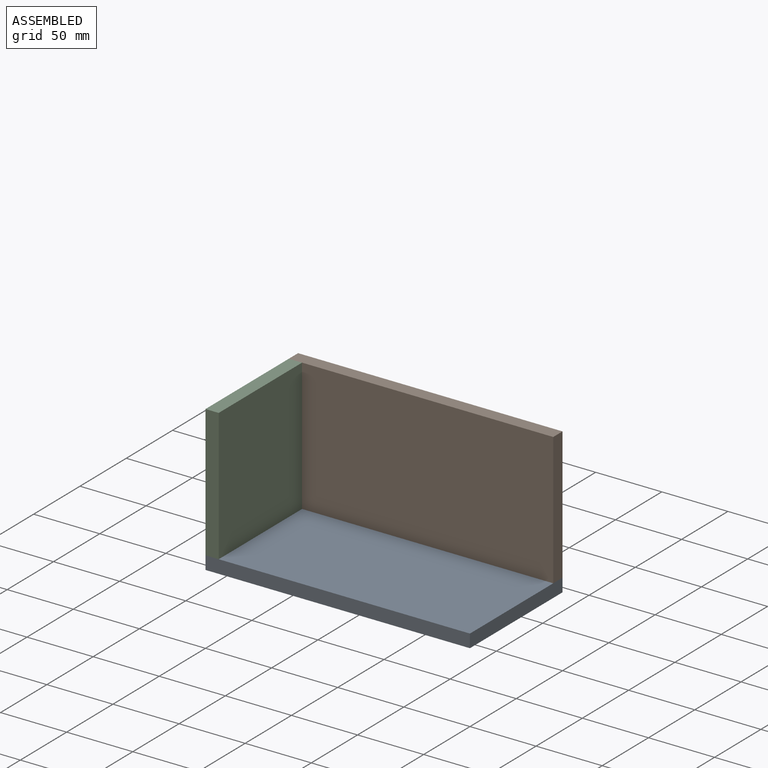
[diagram: assembled view]
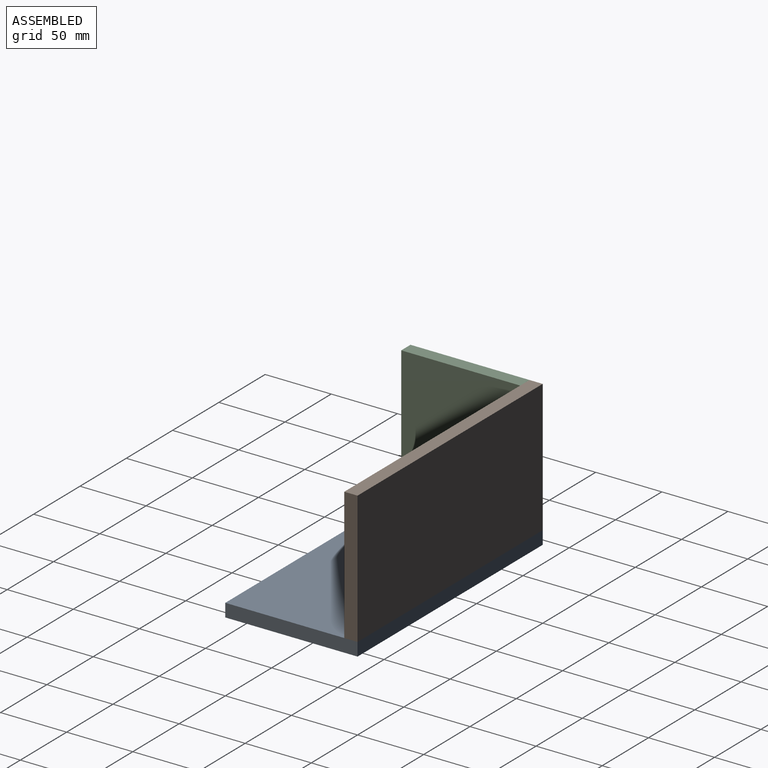
[diagram: assembled view, second angle]
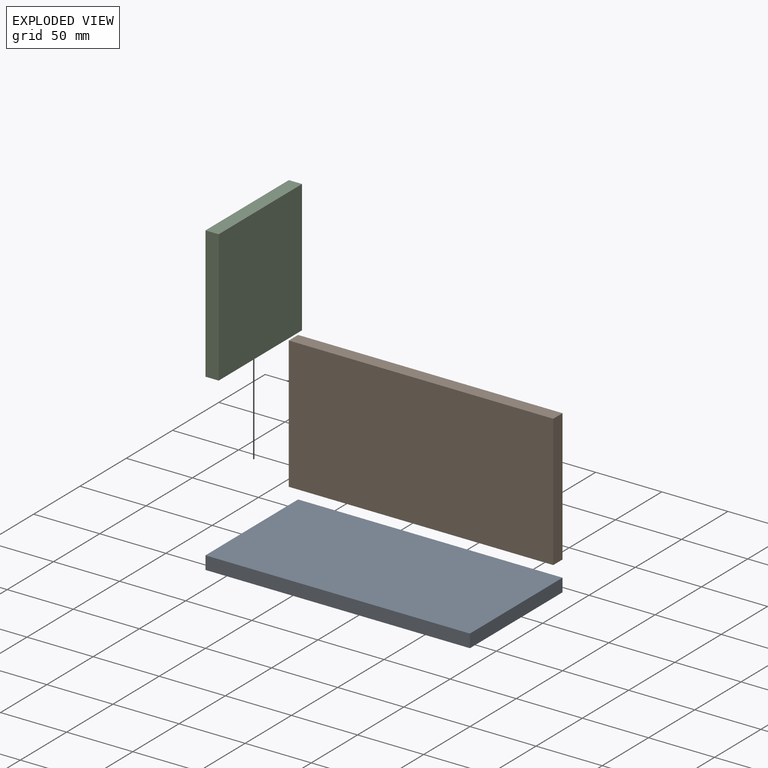
[diagram: exploded view]
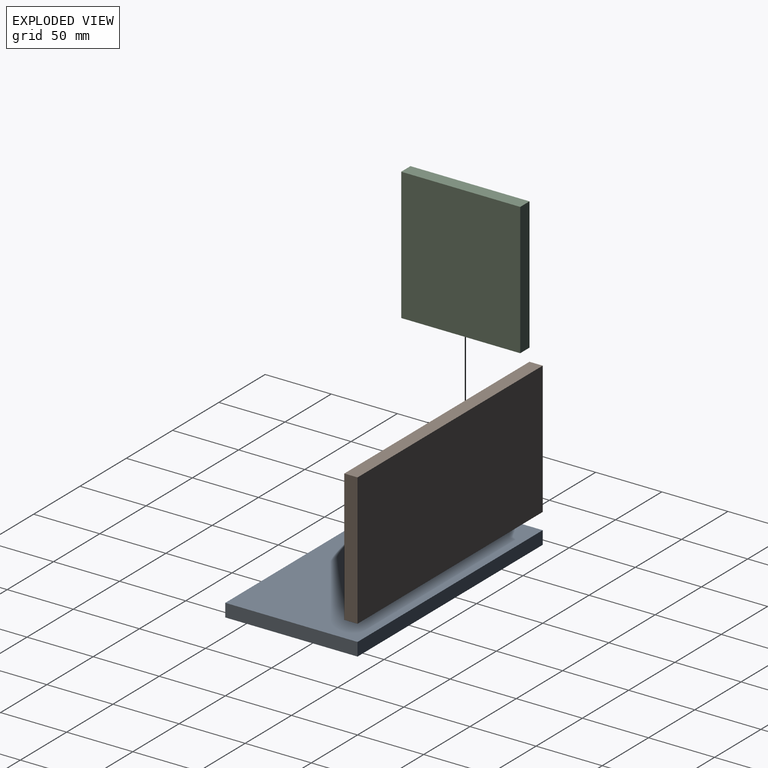
[diagram: exploded view, second angle]
ASSEMBLY  parts=3 mates=11
PART A: 6 faces, bbox 200x100x10 mm
  f0: plane 200x10mm, normal (0,1,0), area 2000mm2, adj f1,f3,f4,f5
  f1: plane 100x10mm, normal (-1,0,0), area 1000mm2, adj f0,f2,f4,f5
  f2: plane 200x10mm, normal (0,-1,0), area 2000mm2, adj f1,f3,f4,f5
  f3: plane 100x10mm, normal (1,0,0), area 1000mm2, adj f0,f2,f4,f5
  f4: plane 200x100mm, normal (0,0,1), area 20000mm2, adj f0,f1,f2,f3
  f5: plane 200x100mm, normal (0,0,-1), area 20000mm2, adj f0,f1,f2,f3
PART B: 6 faces, bbox 200x10x100 mm
  f0: plane 200x10mm, normal (0,0,1), area 2000mm2, adj f1,f3,f4,f5
  f1: plane 100x10mm, normal (-1,0,0), area 1000mm2, adj f0,f2,f4,f5
  f2: plane 200x10mm, normal (0,0,-1), area 2000mm2, adj f1,f3,f4,f5
  f3: plane 100x10mm, normal (1,0,0), area 1000mm2, adj f0,f2,f4,f5
  f4: plane 200x100mm, normal (0,-1,0), area 20000mm2, adj f0,f1,f2,f3
  f5: plane 200x100mm, normal (0,1,0), area 20000mm2, adj f0,f1,f2,f3
PART C: 6 faces, bbox 90x10x100 mm
  f0: plane 90x10mm, normal (0,0,1), area 900mm2, adj f1,f3,f4,f5
  f1: plane 100x10mm, normal (-1,0,0), area 1000mm2, adj f0,f2,f4,f5
  f2: plane 90x10mm, normal (0,0,-1), area 900mm2, adj f1,f3,f4,f5
  f3: plane 100x10mm, normal (1,0,0), area 1000mm2, adj f0,f2,f4,f5
  f4: plane 100x90mm, normal (0,-1,0), area 9000mm2, adj f0,f1,f2,f3
  f5: plane 100x90mm, normal (0,1,0), area 9000mm2, adj f0,f1,f2,f3
PLACE A t=(0,0,-10)mm
PLACE B t=(0,45,50)mm
PLACE C rot(axis=(-0.71,-0.71,0),180deg) t=(-95,-5,50)mm
MATE parallel B.f2 <-> A.f4  axis (0,0,-1) through (0,45,0)mm
MATE planar B.f2 <-> A.f4  axis (0,0,-1) through (0,45,0)mm
MATE parallel B.f1 <-> A.f1  axis (-1,0,0) through (-100,45,50)mm
MATE parallel B.f1 <-> A.f1  axis (-1,0,0) through (-100,45,50)mm
MATE planar B.f5 <-> A.f0  axis (0,1,0) through (0,50,50)mm
MATE planar C.f0 <-> A.f4  axis (0,0,-1) through (-95,-5,0)mm
MATE planar C.f3 <-> B.f4  axis (0,1,0) through (-95,40,50)mm
MATE parallel C.f3 <-> B.f4  axis (0,1,0) through (-95,40,50)mm
MATE parallel C.f4 <-> A.f1  axis (-1,0,0) through (-100,-5,50)mm
MATE parallel A.f3 <-> B.f3  axis (1,0,0) through (100,0,-5)mm
MATE parallel C.f4 <-> A.f1  axis (-1,0,0) through (-100,-5,50)mm
